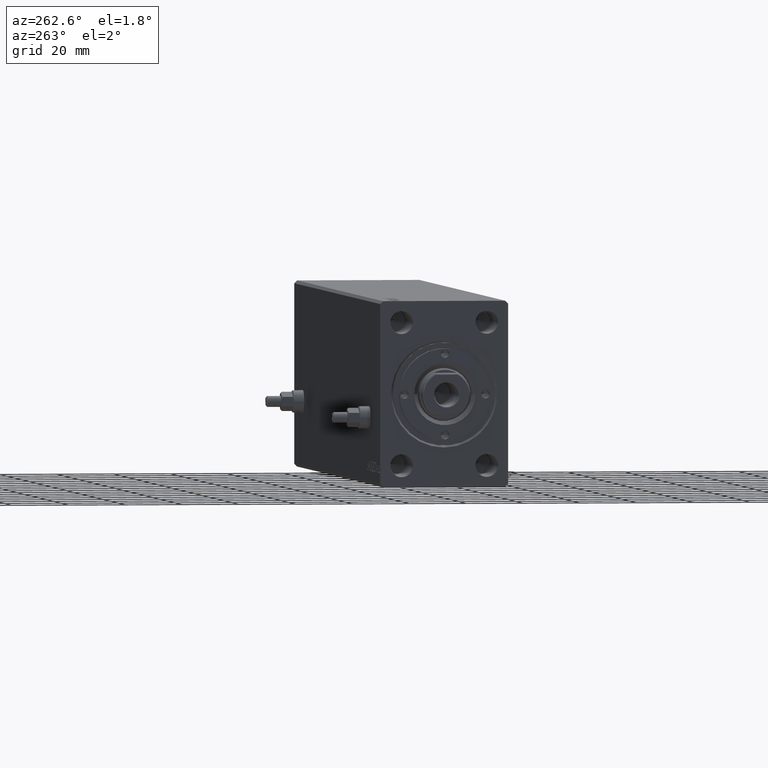
[diagram: clean part render]
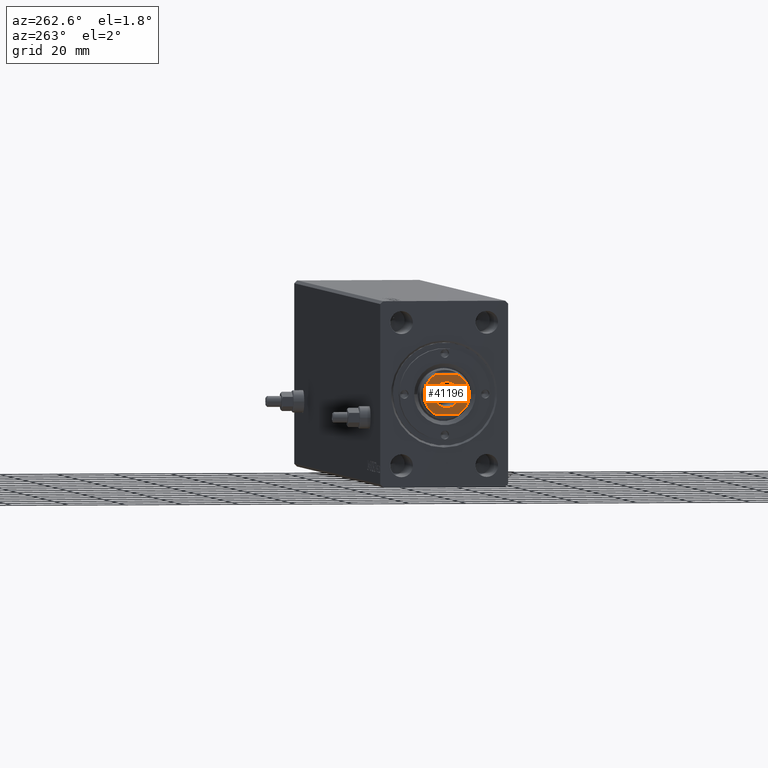
[diagram: same view with one face highlighted and labeled with its STEP entity id]
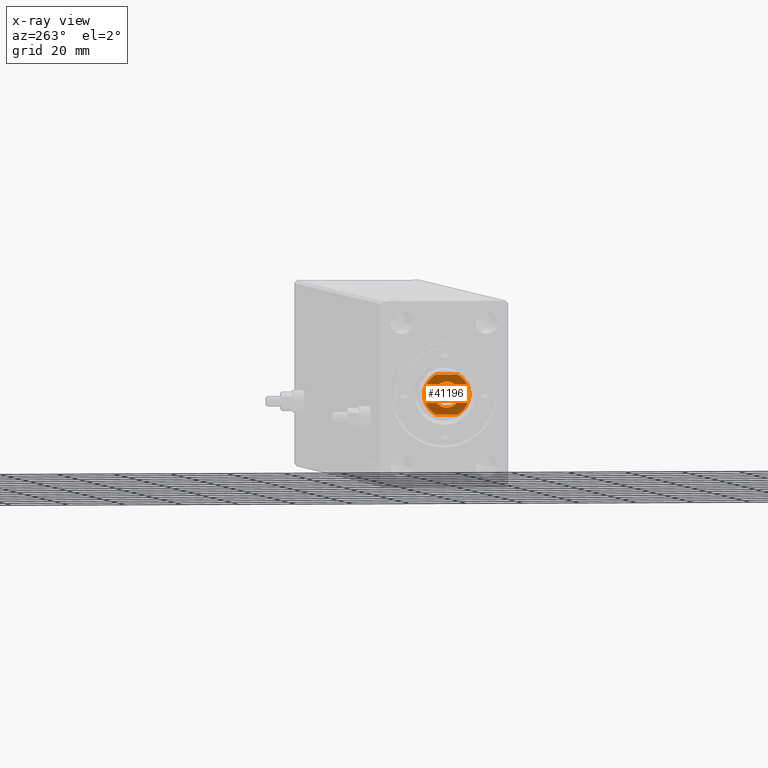
[diagram: x-ray of the same camera — body ghosted, the highlighted face saturated]
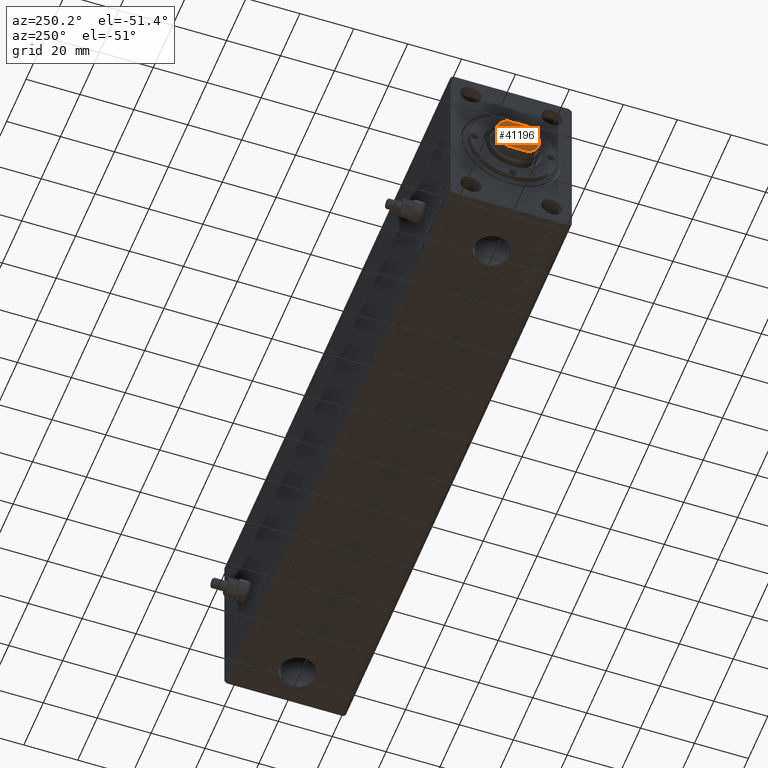
[diagram: same view with one face highlighted and labeled with its STEP entity id]
A machine part, auxiliary view. The second image highlights one B-rep face of the part: STEP entity #41196.
The next image is the same camera in x-ray: the body ghosted, the highlighted face saturated — about 0% of this face is hidden behind the body in this view.
A second angle (auxiliary view) of the same face is appended — the face is thin or edge-on in the first view.
In plain terms, the highlighted planar face has unit normal (-1, 0, 0).
Its self-contained STEP definition (entity closure, byte-faithful):
#373 = DIRECTION ( 'NONE',  ( 0.000000000000000000, 1.000000000000000000, 0.000000000000000000 ) ) ;
#405 = ORIENTED_EDGE ( 'NONE', *, *, #10362, .T. ) ;
#1929 = CARTESIAN_POINT ( 'NONE',  ( -6.999999999999999112, -4.000000000000001776, 227.2000000000000171 ) ) ;
#2720 = VERTEX_POINT ( 'NONE', #32111 ) ;
#3071 = CIRCLE ( 'NONE', #18349, 4.550000000000026468 ) ;
#3781 = EDGE_CURVE ( 'NONE', #30726, #2720, #29971, .T. ) ;
#3966 = CARTESIAN_POINT ( 'NONE',  ( -6.999999999999999112, -3.872983346207431232, 227.2000000000000171 ) ) ;
#9451 = EDGE_CURVE ( 'NONE', #36667, #30726, #17729, .T. ) ;
#10362 = EDGE_CURVE ( 'NONE', #37346, #13627, #3071, .T. ) ;
#10899 = EDGE_CURVE ( 'NONE', #37620, #36667, #17642, .T. ) ;
#11525 = DIRECTION ( 'NONE',  ( 1.000000000000000000, 0.000000000000000000, -0.000000000000000000 ) ) ;
#11968 = DIRECTION ( 'NONE',  ( 0.000000000000000000, -1.000000000000000000, 0.000000000000000000 ) ) ;
#12077 = CARTESIAN_POINT ( 'NONE',  ( 6.999999999999991118, 3.872983346207431232, 227.2000000000000171 ) ) ;
#12280 = DIRECTION ( 'NONE',  ( 1.000000000000000000, 0.000000000000000000, 0.000000000000000000 ) ) ;
#13627 = VERTEX_POINT ( 'NONE', #17358 ) ;
#14970 = DIRECTION ( 'NONE',  ( 0.000000000000000000, 0.000000000000000000, 1.000000000000000000 ) ) ;
#15006 = EDGE_CURVE ( 'NONE', #2720, #37620, #25455, .T. ) ;
#15881 = FACE_BOUND ( 'NONE', #42336, .T. ) ;
#16134 = CARTESIAN_POINT ( 'NONE',  ( 0.000000000000000000, 0.000000000000000000, 227.2000000000000171 ) ) ;
#16363 = DIRECTION ( 'NONE',  ( 1.000000000000000000, 0.000000000000000000, 0.000000000000000000 ) ) ;
#17194 = EDGE_CURVE ( 'NONE', #13627, #37346, #32591, .T. ) ;
#17358 = CARTESIAN_POINT ( 'NONE',  ( -4.550000000000026468, 5.572142936120488881E-16, 227.2000000000000171 ) ) ;
#17642 = CIRCLE ( 'NONE', #23476, 8.000000000000000000 ) ;
#17729 = LINE ( 'NONE', #31676, #41796 ) ;
#18349 = AXIS2_PLACEMENT_3D ( 'NONE', #16134, #23901, #16363 ) ;
#18623 = PLANE ( 'NONE',  #29668 ) ;
#19933 = CARTESIAN_POINT ( 'NONE',  ( 0.000000000000000000, 0.000000000000000000, 227.2000000000000171 ) ) ;
#20917 = AXIS2_PLACEMENT_3D ( 'NONE', #43611, #39952, #12280 ) ;
#22043 = FACE_OUTER_BOUND ( 'NONE', #42290, .T. ) ;
#23476 = AXIS2_PLACEMENT_3D ( 'NONE', #30196, #43920, #26989 ) ;
#23901 = DIRECTION ( 'NONE',  ( -0.000000000000000000, -0.000000000000000000, -1.000000000000000000 ) ) ;
#24510 = VECTOR ( 'NONE', #11968, 1000.000000000000000 ) ;
#25455 = LINE ( 'NONE', #1929, #24510 ) ;
#26989 = DIRECTION ( 'NONE',  ( 1.000000000000000000, 0.000000000000000000, 0.000000000000000000 ) ) ;
#27119 = ORIENTED_EDGE ( 'NONE', *, *, #9451, .T. ) ;
#29668 = AXIS2_PLACEMENT_3D ( 'NONE', #29814, #14970, #11525 ) ;
#29814 = CARTESIAN_POINT ( 'NONE',  ( 0.000000000000000000, 0.000000000000000000, 227.2000000000000171 ) ) ;
#29971 = CIRCLE ( 'NONE', #43890, 8.000000000000000000 ) ;
#30196 = CARTESIAN_POINT ( 'NONE',  ( 0.000000000000000000, 0.000000000000000000, 227.2000000000000171 ) ) ;
#30726 = VERTEX_POINT ( 'NONE', #12077 ) ;
#31220 = CARTESIAN_POINT ( 'NONE',  ( 4.550000000000026468, 0.000000000000000000, 227.2000000000000171 ) ) ;
#31676 = CARTESIAN_POINT ( 'NONE',  ( 6.999999999999999112, 4.000000000000001776, 227.2000000000000171 ) ) ;
#32111 = CARTESIAN_POINT ( 'NONE',  ( -6.999999999999999112, 3.872983346207431232, 227.2000000000000171 ) ) ;
#32569 = DIRECTION ( 'NONE',  ( 0.000000000000000000, 0.000000000000000000, 1.000000000000000000 ) ) ;
#32591 = CIRCLE ( 'NONE', #20917, 4.550000000000026468 ) ;
#34591 = ORIENTED_EDGE ( 'NONE', *, *, #15006, .T. ) ;
#35138 = ORIENTED_EDGE ( 'NONE', *, *, #17194, .T. ) ;
#35406 = CARTESIAN_POINT ( 'NONE',  ( 6.999999999999999112, -3.872983346207431232, 227.2000000000000171 ) ) ;
#36329 = ORIENTED_EDGE ( 'NONE', *, *, #10899, .T. ) ;
#36667 = VERTEX_POINT ( 'NONE', #35406 ) ;
#36890 = ORIENTED_EDGE ( 'NONE', *, *, #3781, .T. ) ;
#37346 = VERTEX_POINT ( 'NONE', #31220 ) ;
#37620 = VERTEX_POINT ( 'NONE', #3966 ) ;
#39952 = DIRECTION ( 'NONE',  ( -0.000000000000000000, -0.000000000000000000, -1.000000000000000000 ) ) ;
#41196 = ADVANCED_FACE ( 'NONE', ( #22043, #15881 ), #18623, .T. ) ;
#41796 = VECTOR ( 'NONE', #373, 1000.000000000000000 ) ;
#42290 = EDGE_LOOP ( 'NONE', ( #34591, #36329, #27119, #36890 ) ) ;
#42336 = EDGE_LOOP ( 'NONE', ( #405, #35138 ) ) ;
#43086 = DIRECTION ( 'NONE',  ( 1.000000000000000000, 0.000000000000000000, 0.000000000000000000 ) ) ;
#43611 = CARTESIAN_POINT ( 'NONE',  ( 0.000000000000000000, 0.000000000000000000, 227.2000000000000171 ) ) ;
#43890 = AXIS2_PLACEMENT_3D ( 'NONE', #19933, #32569, #43086 ) ;
#43920 = DIRECTION ( 'NONE',  ( 0.000000000000000000, 0.000000000000000000, 1.000000000000000000 ) ) ;